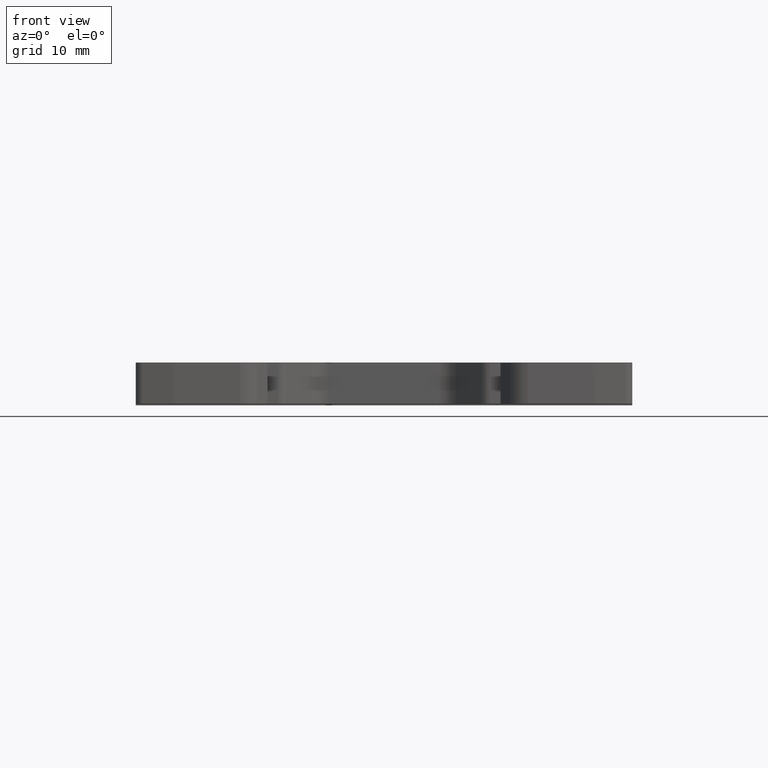
[diagram: clean part render]
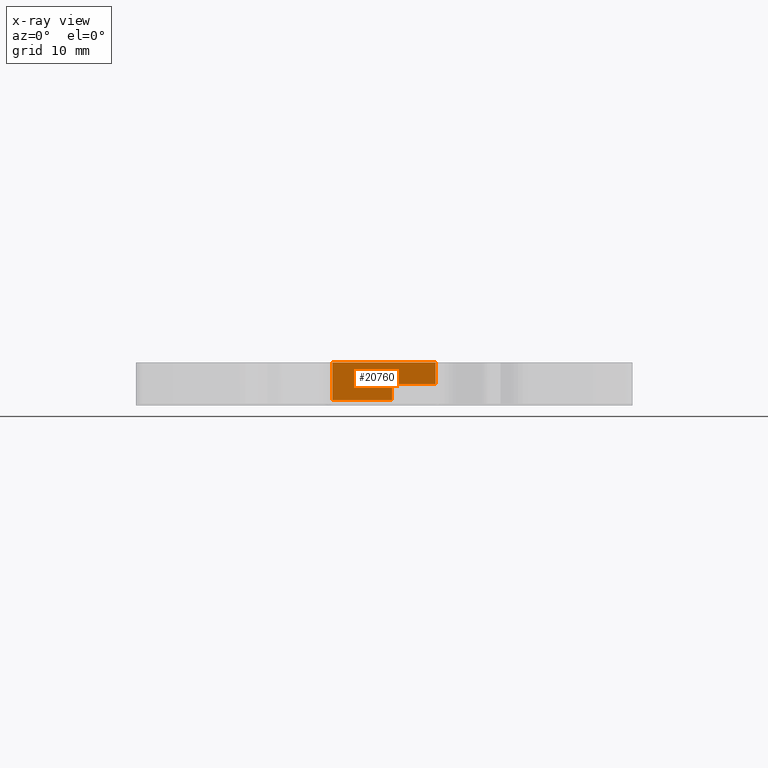
[diagram: x-ray — body ghosted, one internal face saturated and labeled with its STEP entity id]
A machine part, front view, then the same camera in x-ray: the body is ghosted and one INTERNAL B-rep face — a face not visible from any outside direction — is saturated and labeled: STEP entity #20760.
In plain terms, the highlighted planar face has unit normal (0, -1, 0).
Its self-contained STEP definition (entity closure, byte-faithful):
#742 = AXIS2_PLACEMENT_3D ( 'NONE', #13691, #13660, #13697 ) ;
#3585 = VECTOR ( 'NONE', #18055, 1000.000000000000000 ) ;
#4143 = VECTOR ( 'NONE', #9527, 1000.000000000000000 ) ;
#4146 = VECTOR ( 'NONE', #9371, 1000.000000000000000 ) ;
#4227 = VECTOR ( 'NONE', #9677, 1000.000000000000000 ) ;
#4236 = VECTOR ( 'NONE', #9659, 1000.000000000000000 ) ;
#4326 = VECTOR ( 'NONE', #17611, 1000.000000000000000 ) ;
#5427 = VERTEX_POINT ( 'NONE', #19056 ) ;
#5451 = VERTEX_POINT ( 'NONE', #19160 ) ;
#5470 = VERTEX_POINT ( 'NONE', #19181 ) ;
#5508 = VERTEX_POINT ( 'NONE', #19304 ) ;
#5549 = VERTEX_POINT ( 'NONE', #19311 ) ;
#5592 = VERTEX_POINT ( 'NONE', #19428 ) ;
#6643 = EDGE_CURVE ( 'NONE', #5470, #5592, #9365, .T. ) ;
#6675 = EDGE_CURVE ( 'NONE', #5508, #5549, #9464, .T. ) ;
#6719 = EDGE_CURVE ( 'NONE', #5592, #5508, #9642, .T. ) ;
#6725 = EDGE_CURVE ( 'NONE', #5451, #5427, #9708, .T. ) ;
#6820 = EDGE_CURVE ( 'NONE', #5549, #5451, #17609, .T. ) ;
#6969 = EDGE_CURVE ( 'NONE', #5470, #5427, #18067, .T. ) ;
#9365 = LINE ( 'NONE', #9403, #4146 ) ;
#9371 = DIRECTION ( 'NONE',  ( 0.0000000000000000000, -0.0000000000000000000, -1.000000000000000000 ) ) ;
#9403 = CARTESIAN_POINT ( 'NONE',  ( 1557.207997447484800, 724.0935700947442200, -71.71926418511326100 ) ) ;
#9464 = LINE ( 'NONE', #9537, #4143 ) ;
#9527 = DIRECTION ( 'NONE',  ( -0.0000000000000000000, 0.0000000000000000000, 1.000000000000000000 ) ) ;
#9537 = CARTESIAN_POINT ( 'NONE',  ( 1565.391483793550400, 724.0935700947442200, -71.71926418511326100 ) ) ;
#9642 = LINE ( 'NONE', #9657, #4236 ) ;
#9657 = CARTESIAN_POINT ( 'NONE',  ( 1557.207997447484800, 724.0935700947442200, 0.7000000000000061700 ) ) ;
#9659 = DIRECTION ( 'NONE',  ( 1.000000000000000000, 0.0000000000000000000, 0.0000000000000000000 ) ) ;
#9677 = DIRECTION ( 'NONE',  ( -0.0000000000000000000, 0.0000000000000000000, 1.000000000000000000 ) ) ;
#9700 = CARTESIAN_POINT ( 'NONE',  ( 1571.364272216809900, 724.0935700947442200, -71.71926418511326100 ) ) ;
#9708 = LINE ( 'NONE', #9700, #4227 ) ;
#11287 = EDGE_LOOP ( 'NONE', ( #16162, #16149, #16146, #16181, #16262, #16209 ) ) ;
#13660 = DIRECTION ( 'NONE',  ( 0.0000000000000000000, -1.000000000000000000, 0.0000000000000000000 ) ) ;
#13667 = PLANE ( 'NONE',  #742 ) ;
#13691 = CARTESIAN_POINT ( 'NONE',  ( 1557.207997447484800, 724.0935700947442200, -71.71926418511326100 ) ) ;
#13693 = FACE_OUTER_BOUND ( 'NONE', #11287, .T. ) ;
#13697 = DIRECTION ( 'NONE',  ( 0.0000000000000000000, -0.0000000000000000000, -1.000000000000000000 ) ) ;
#16146 = ORIENTED_EDGE ( 'NONE', *, *, #6820, .T. ) ;
#16149 = ORIENTED_EDGE ( 'NONE', *, *, #6675, .T. ) ;
#16162 = ORIENTED_EDGE ( 'NONE', *, *, #6719, .T. ) ;
#16181 = ORIENTED_EDGE ( 'NONE', *, *, #6725, .T. ) ;
#16209 = ORIENTED_EDGE ( 'NONE', *, *, #6643, .T. ) ;
#16262 = ORIENTED_EDGE ( 'NONE', *, *, #6969, .F. ) ;
#17609 = LINE ( 'NONE', #17613, #4326 ) ;
#17611 = DIRECTION ( 'NONE',  ( 1.000000000000000000, 0.0000000000000000000, 0.0000000000000000000 ) ) ;
#17613 = CARTESIAN_POINT ( 'NONE',  ( 1557.207997447484800, 724.0935700947442200, 2.899999999999999900 ) ) ;
#18054 = CARTESIAN_POINT ( 'NONE',  ( 1532.434280406640000, 724.0935700947442200, 5.850000000000000500 ) ) ;
#18055 = DIRECTION ( 'NONE',  ( 1.000000000000000000, 0.0000000000000000000, -0.0000000000000000000 ) ) ;
#18067 = LINE ( 'NONE', #18054, #3585 ) ;
#19056 = CARTESIAN_POINT ( 'NONE',  ( 1571.364272216809900, 724.0935700947442200, 5.849999999999997000 ) ) ;
#19160 = CARTESIAN_POINT ( 'NONE',  ( 1571.364272216809900, 724.0935700947442200, 2.899999999999999900 ) ) ;
#19181 = CARTESIAN_POINT ( 'NONE',  ( 1557.207997447484800, 724.0935700947442200, 5.849999999999997000 ) ) ;
#19304 = CARTESIAN_POINT ( 'NONE',  ( 1565.391483793550400, 724.0935700947442200, 0.7000000000000029500 ) ) ;
#19311 = CARTESIAN_POINT ( 'NONE',  ( 1565.391483793550400, 724.0935700947442200, 2.899999999999999900 ) ) ;
#19428 = CARTESIAN_POINT ( 'NONE',  ( 1557.207997447484800, 724.0935700947442200, 0.7000000000000046200 ) ) ;
#20760 = ADVANCED_FACE ( 'NONE', ( #13693 ), #13667, .T. ) ;